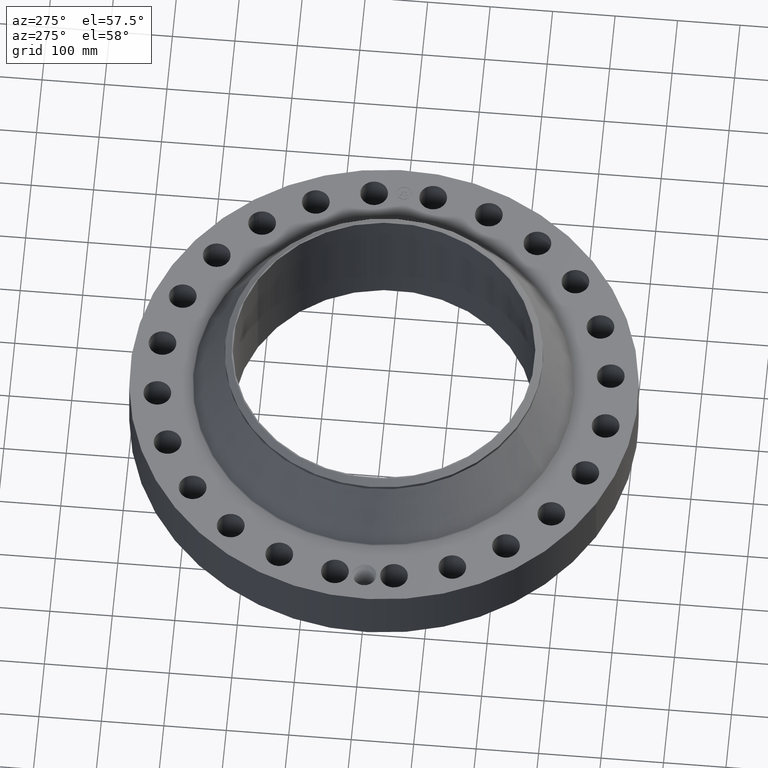
[diagram: clean part render]
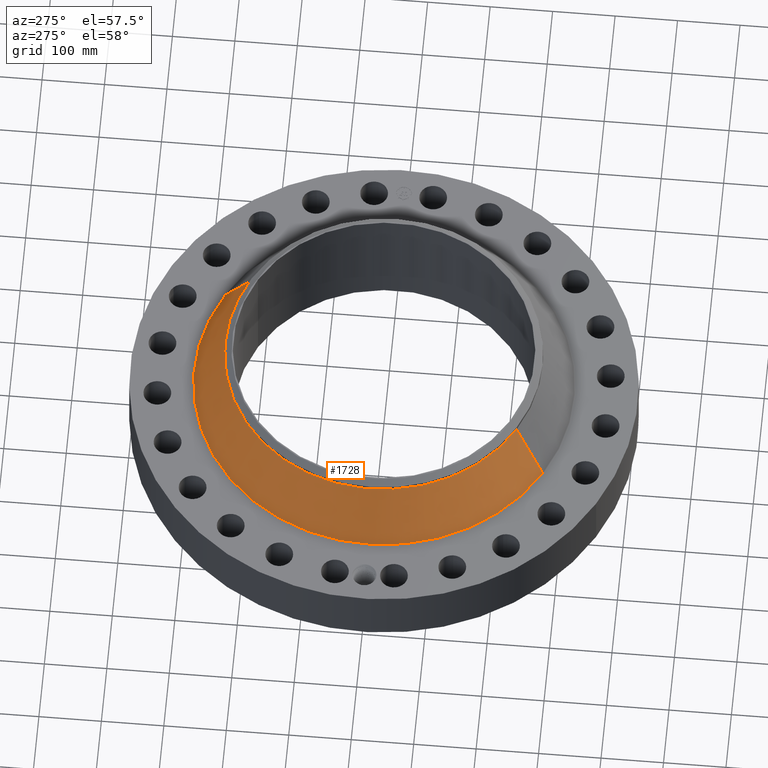
[diagram: same view with one face highlighted and labeled with its STEP entity id]
A machine part, auxiliary view. The second image highlights one B-rep face of the part: STEP entity #1728.
In plain terms, the highlighted conical surface has half-angle 30.17 deg.
Its self-contained STEP definition (entity closure, byte-faithful):
#1344=AXIS2_PLACEMENT_3D('Circle Axis2P3D',#1342,#1343,$) ;
#1701=AXIS2_PLACEMENT_3D('Cone Axis2P3D',#1698,#1699,#1700) ;
#1705=AXIS2_PLACEMENT_3D('Circle Axis2P3D',#1703,#1704,$) ;
#1339=CARTESIAN_POINT('Vertex',(4.79425538606,8.77582561894,7.31553548147)) ;
#1342=CARTESIAN_POINT('Axis2P3D Location',(0.,0.,7.31553548147)) ;
#1346=CARTESIAN_POINT('Vertex',(-4.79425538606,-8.77582561894,7.31553548147)) ;
#1698=CARTESIAN_POINT('Axis2P3D Location',(0.,0.,7.31553548147)) ;
#1703=CARTESIAN_POINT('Axis2P3D Location',(0.,0.,3.93469256134)) ;
#1707=CARTESIAN_POINT('Vertex',(-5.73647060033,-10.5005389999,3.93469256134)) ;
#1709=CARTESIAN_POINT('Vertex',(5.73647060033,10.5005389999,3.93469256134)) ;
#1712=CARTESIAN_POINT('Line Origine',(-5.26536299319,-9.6381823094,5.62511402141)) ;
#1717=CARTESIAN_POINT('Line Origine',(5.26536299319,9.6381823094,5.62511402141)) ;
#1343=DIRECTION('Axis2P3D Direction',(0.,0.,-0.0393700787402)) ;
#1699=DIRECTION('Axis2P3D Direction',(0.,0.,-0.0393700787402)) ;
#1700=DIRECTION('Axis2P3D XDirection',(0.0188750212049,0.0345504945626,0.)) ;
#1704=DIRECTION('Axis2P3D Direction',(0.,0.,-0.0393700787402)) ;
#1713=DIRECTION('Vector Direction',(-0.00948586819825,-0.0173637652667,-0.0340370542247)) ;
#1718=DIRECTION('Vector Direction',(0.00948586819825,0.0173637652667,-0.0340370542247)) ;
#1714=VECTOR('Line Direction',#1713,0.0393700787402) ;
#1719=VECTOR('Line Direction',#1718,0.0393700787402) ;
#1723=ORIENTED_EDGE('',*,*,#1711,.F.) ;
#1724=ORIENTED_EDGE('',*,*,#1716,.T.) ;
#1725=ORIENTED_EDGE('',*,*,#1348,.T.) ;
#1726=ORIENTED_EDGE('',*,*,#1721,.F.) ;
#1728=ADVANCED_FACE('PartBody',(#1727),#1702,.T.) ;
#1345=CIRCLE('generated circle',#1344,10.) ;
#1706=CIRCLE('generated circle',#1705,11.965300424) ;
#1702=CONICAL_SURFACE('Cone',#1701,10.,0.52655964068) ;
#1348=EDGE_CURVE('',#1347,#1340,#1345,.T.) ;
#1711=EDGE_CURVE('',#1708,#1710,#1706,.T.) ;
#1716=EDGE_CURVE('',#1708,#1347,#1715,.F.) ;
#1721=EDGE_CURVE('',#1710,#1340,#1720,.F.) ;
#1722=EDGE_LOOP('',(#1723,#1724,#1725,#1726)) ;
#1727=FACE_OUTER_BOUND('',#1722,.T.) ;
#1715=LINE('Line',#1712,#1714) ;
#1720=LINE('Line',#1717,#1719) ;
#1340=VERTEX_POINT('',#1339) ;
#1347=VERTEX_POINT('',#1346) ;
#1708=VERTEX_POINT('',#1707) ;
#1710=VERTEX_POINT('',#1709) ;